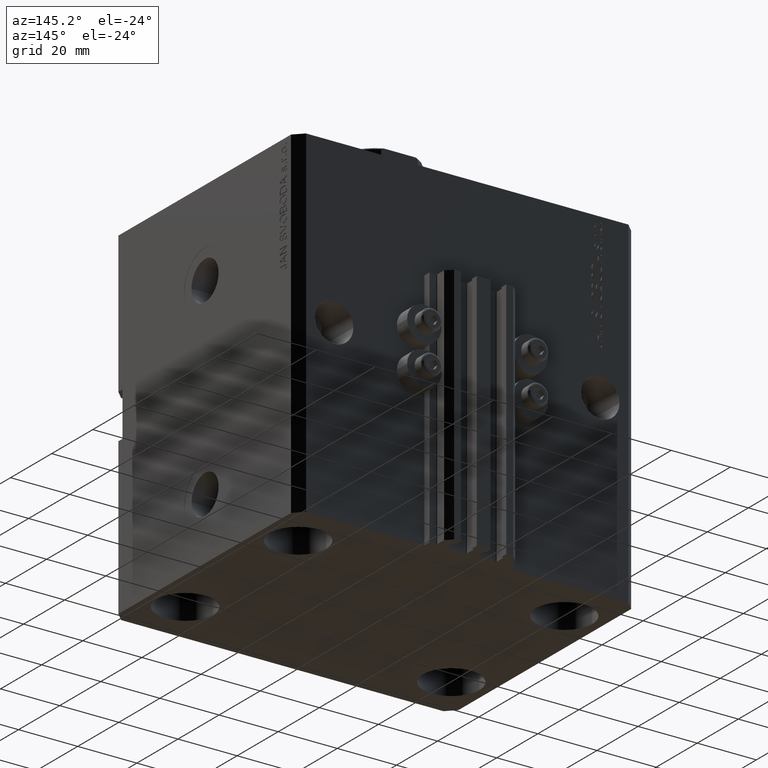
[diagram: clean part render]
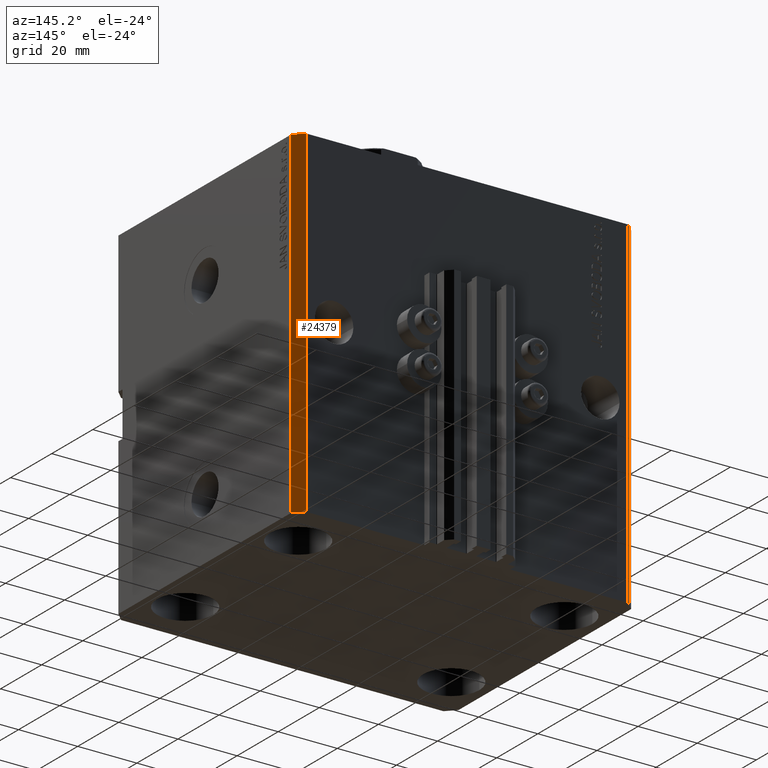
[diagram: same view with one face highlighted and labeled with its STEP entity id]
A machine part, auxiliary view. The second image highlights one B-rep face of the part: STEP entity #24379.
In plain terms, the highlighted planar face has unit normal (0.7071, 0.7071, 0).
Its self-contained STEP definition (entity closure, byte-faithful):
#731 = CARTESIAN_POINT ( 'NONE',  ( 57.50000000000055422, 41.99999999999997868, -115.0000000000000000 ) ) ;
#1649 = LINE ( 'NONE', #16677, #42155 ) ;
#2636 = CARTESIAN_POINT ( 'NONE',  ( 57.50000000000055422, 41.99999999999997868, -115.0000000000000000 ) ) ;
#5919 = EDGE_CURVE ( 'NONE', #29587, #47405, #39589, .T. ) ;
#6104 = VECTOR ( 'NONE', #22342, 1000.000000000000000 ) ;
#7046 = EDGE_CURVE ( 'NONE', #18361, #29587, #1649, .T. ) ;
#7599 = EDGE_LOOP ( 'NONE', ( #17292, #32112, #27432, #10899 ) ) ;
#8837 = CARTESIAN_POINT ( 'NONE',  ( 54.50000000000058975, 45.00000000000002842, -115.0000000000000000 ) ) ;
#9857 = DIRECTION ( 'NONE',  ( -0.7071067811865376918, 0.7071067811865574537, 0.000000000000000000 ) ) ;
#10436 = VERTEX_POINT ( 'NONE', #28264 ) ;
#10899 = ORIENTED_EDGE ( 'NONE', *, *, #5919, .T. ) ;
#11600 = CARTESIAN_POINT ( 'NONE',  ( 57.50000000000055422, 41.99999999999997868, -115.0000000000000000 ) ) ;
#13739 = EDGE_CURVE ( 'NONE', #18361, #10436, #41029, .T. ) ;
#16677 = CARTESIAN_POINT ( 'NONE',  ( 57.50000000000055422, 41.99999999999997868, -115.0000000000000000 ) ) ;
#17275 = CARTESIAN_POINT ( 'NONE',  ( 54.50000000000058975, 45.00000000000002842, -115.0000000000000000 ) ) ;
#17292 = ORIENTED_EDGE ( 'NONE', *, *, #39465, .F. ) ;
#17502 = CARTESIAN_POINT ( 'NONE',  ( 57.50000000000055422, 41.99999999999997868, 0.000000000000000000 ) ) ;
#18361 = VERTEX_POINT ( 'NONE', #731 ) ;
#19711 = PLANE ( 'NONE',  #44994 ) ;
#22342 = DIRECTION ( 'NONE',  ( 0.000000000000000000, 0.000000000000000000, 1.000000000000000000 ) ) ;
#23412 = DIRECTION ( 'NONE',  ( 0.7071067811865574537, 0.7071067811865376918, -0.000000000000000000 ) ) ;
#24379 = ADVANCED_FACE ( 'NONE', ( #35209 ), #19711, .T. ) ;
#27432 = ORIENTED_EDGE ( 'NONE', *, *, #7046, .T. ) ;
#28264 = CARTESIAN_POINT ( 'NONE',  ( 57.50000000000055422, 41.99999999999997868, 0.000000000000000000 ) ) ;
#29587 = VERTEX_POINT ( 'NONE', #17275 ) ;
#31670 = DIRECTION ( 'NONE',  ( -0.7071067811865376918, 0.7071067811865574537, 0.000000000000000000 ) ) ;
#32112 = ORIENTED_EDGE ( 'NONE', *, *, #13739, .F. ) ;
#32722 = VECTOR ( 'NONE', #35917, 1000.000000000000000 ) ;
#34389 = VECTOR ( 'NONE', #9857, 999.9999999999998863 ) ;
#35209 = FACE_OUTER_BOUND ( 'NONE', #7599, .T. ) ;
#35917 = DIRECTION ( 'NONE',  ( 0.000000000000000000, 0.000000000000000000, 1.000000000000000000 ) ) ;
#36458 = LINE ( 'NONE', #17502, #34389 ) ;
#39465 = EDGE_CURVE ( 'NONE', #10436, #47405, #36458, .T. ) ;
#39589 = LINE ( 'NONE', #8837, #32722 ) ;
#41029 = LINE ( 'NONE', #2636, #6104 ) ;
#42028 = CARTESIAN_POINT ( 'NONE',  ( 54.50000000000058975, 45.00000000000002842, 0.000000000000000000 ) ) ;
#42155 = VECTOR ( 'NONE', #31670, 999.9999999999998863 ) ;
#44994 = AXIS2_PLACEMENT_3D ( 'NONE', #11600, #23412, #45311 ) ;
#45311 = DIRECTION ( 'NONE',  ( -0.7071067811865376918, 0.7071067811865574537, 0.000000000000000000 ) ) ;
#47405 = VERTEX_POINT ( 'NONE', #42028 ) ;